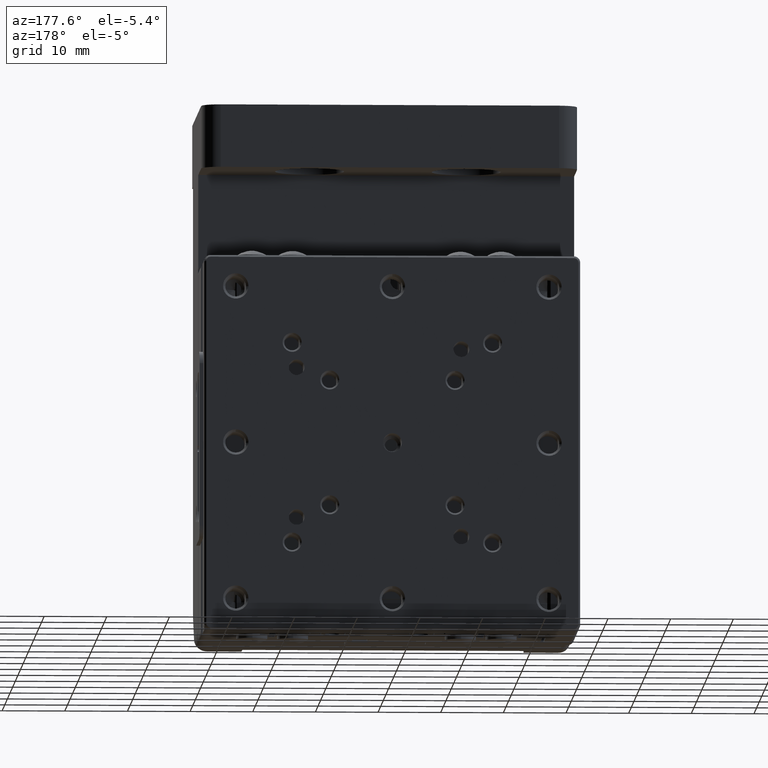
[diagram: clean part render]
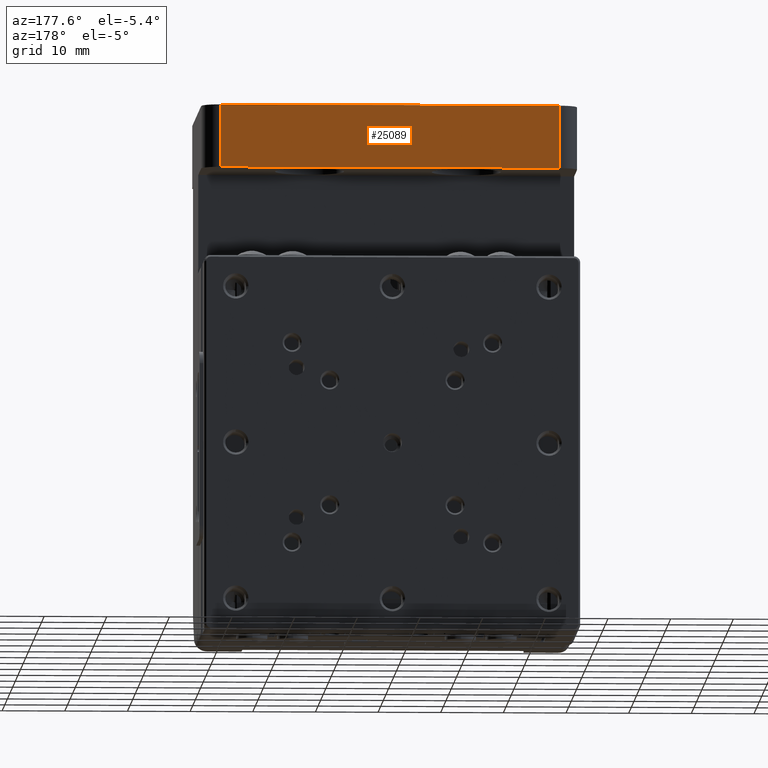
[diagram: same view with one face highlighted and labeled with its STEP entity id]
A machine part, auxiliary view. The second image highlights one B-rep face of the part: STEP entity #25089.
In plain terms, the highlighted planar face has unit normal (-0, -1, 0).
Its self-contained STEP definition (entity closure, byte-faithful):
#616 = ORIENTED_EDGE ( 'NONE', *, *, #32924, .F. ) ;
#1645 = CARTESIAN_POINT ( 'NONE',  ( 20.00000000000000000, 4.857225732735060653E-15, 26.99999999999999645 ) ) ;
#1866 = EDGE_LOOP ( 'NONE', ( #616, #18278, #32657, #20519 ) ) ;
#2854 = VERTEX_POINT ( 'NONE', #27098 ) ;
#4329 = DIRECTION ( 'NONE',  ( 0.000000000000000000, 0.000000000000000000, 1.000000000000000000 ) ) ;
#5204 = CARTESIAN_POINT ( 'NONE',  ( 20.00000000000000000, 2.408204354885450661E-15, 0.000000000000000000 ) ) ;
#6710 = EDGE_CURVE ( 'NONE', #7015, #32474, #12044, .T. ) ;
#6774 = CARTESIAN_POINT ( 'NONE',  ( 20.00000000000000000, 4.857225732735061442E-15, 27.00000000000000000 ) ) ;
#7015 = VERTEX_POINT ( 'NONE', #9449 ) ;
#7484 = VECTOR ( 'NONE', #33185, 1000.000000000000000 ) ;
#7755 = FACE_OUTER_BOUND ( 'NONE', #1866, .T. ) ;
#7812 = DIRECTION ( 'NONE',  ( -1.224510688924804848E-16, 1.000000000000000000, -0.000000000000000000 ) ) ;
#8549 = AXIS2_PLACEMENT_3D ( 'NONE', #5204, #21395, #18851 ) ;
#9449 = CARTESIAN_POINT ( 'NONE',  ( 20.00000000000000000, 10.00000000000000711, 27.00000000000000000 ) ) ;
#11865 = VECTOR ( 'NONE', #4329, 1000.000000000000000 ) ;
#11973 = LINE ( 'NONE', #23602, #11865 ) ;
#12044 = LINE ( 'NONE', #6774, #30516 ) ;
#16107 = PLANE ( 'NONE',  #8549 ) ;
#17602 = VECTOR ( 'NONE', #7812, 1000.000000000000000 ) ;
#18220 = DIRECTION ( 'NONE',  ( 1.224510688924804848E-16, -1.000000000000000000, -0.000000000000000000 ) ) ;
#18278 = ORIENTED_EDGE ( 'NONE', *, *, #27324, .T. ) ;
#18447 = CARTESIAN_POINT ( 'NONE',  ( 20.00000000000000000, 4.857225732735060653E-15, -27.00000000000000000 ) ) ;
#18851 = DIRECTION ( 'NONE',  ( 1.224510688924804848E-16, -1.000000000000000000, 0.000000000000000000 ) ) ;
#18959 = VERTEX_POINT ( 'NONE', #18447 ) ;
#20519 = ORIENTED_EDGE ( 'NONE', *, *, #6710, .T. ) ;
#21395 = DIRECTION ( 'NONE',  ( -1.000000000000000000, -1.224510688924804848E-16, 0.000000000000000000 ) ) ;
#21659 = EDGE_CURVE ( 'NONE', #7015, #2854, #30644, .T. ) ;
#23602 = CARTESIAN_POINT ( 'NONE',  ( 20.00000000000000000, 4.857225732735060653E-15, -30.00000000000000000 ) ) ;
#24643 = CARTESIAN_POINT ( 'NONE',  ( 20.00000000000000000, 10.00000000000000711, 30.00000000000000000 ) ) ;
#25089 = ADVANCED_FACE ( 'NONE', ( #7755 ), #16107, .F. ) ;
#27098 = CARTESIAN_POINT ( 'NONE',  ( 20.00000000000000000, 10.00000000000000711, -26.99999999999999645 ) ) ;
#27324 = EDGE_CURVE ( 'NONE', #18959, #2854, #32366, .T. ) ;
#27443 = CARTESIAN_POINT ( 'NONE',  ( 20.00000000000000000, 10.00000000000000888, -27.00000000000000000 ) ) ;
#30516 = VECTOR ( 'NONE', #18220, 1000.000000000000000 ) ;
#30644 = LINE ( 'NONE', #24643, #7484 ) ;
#32366 = LINE ( 'NONE', #27443, #17602 ) ;
#32474 = VERTEX_POINT ( 'NONE', #1645 ) ;
#32657 = ORIENTED_EDGE ( 'NONE', *, *, #21659, .F. ) ;
#32924 = EDGE_CURVE ( 'NONE', #18959, #32474, #11973, .T. ) ;
#33185 = DIRECTION ( 'NONE',  ( -0.000000000000000000, -0.000000000000000000, -1.000000000000000000 ) ) ;